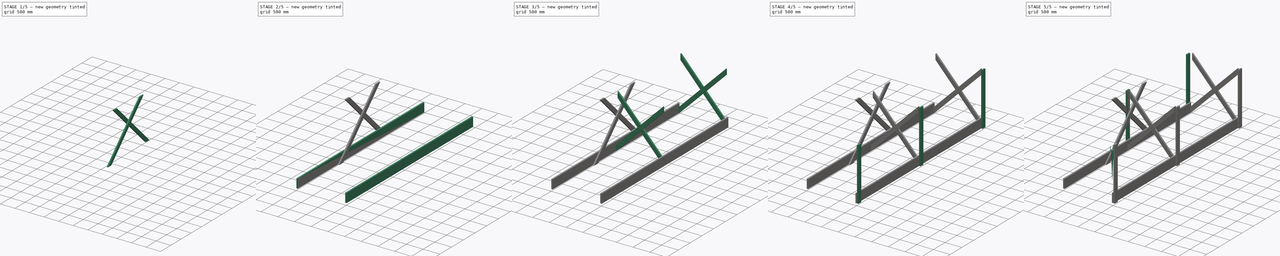
[diagram: build sequence overview — one tinted view per stage of 5, left to right]
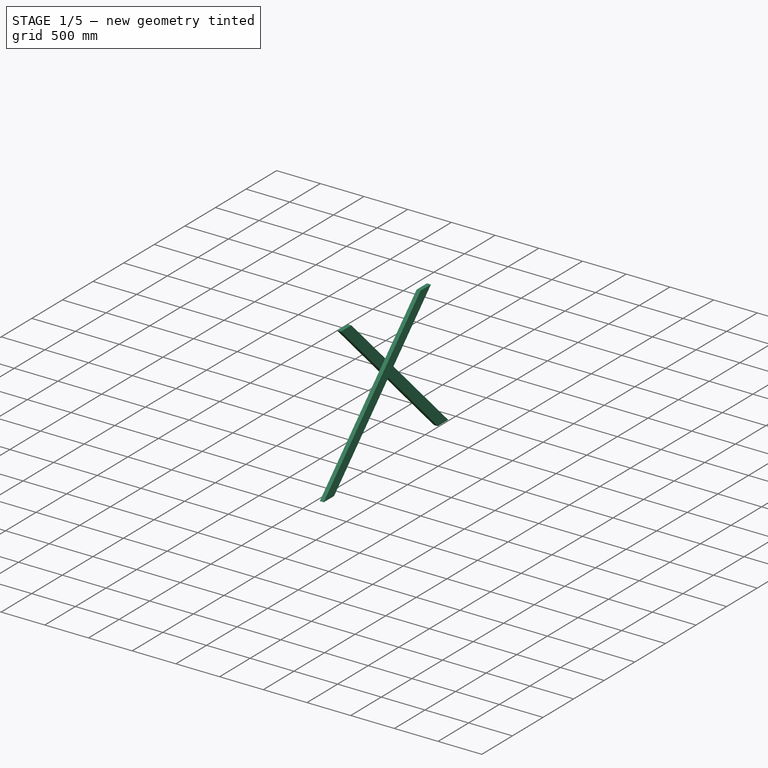
[diagram: stage 1 of 5 — iso view after this stage's code; geometry added in this stage tinted green]
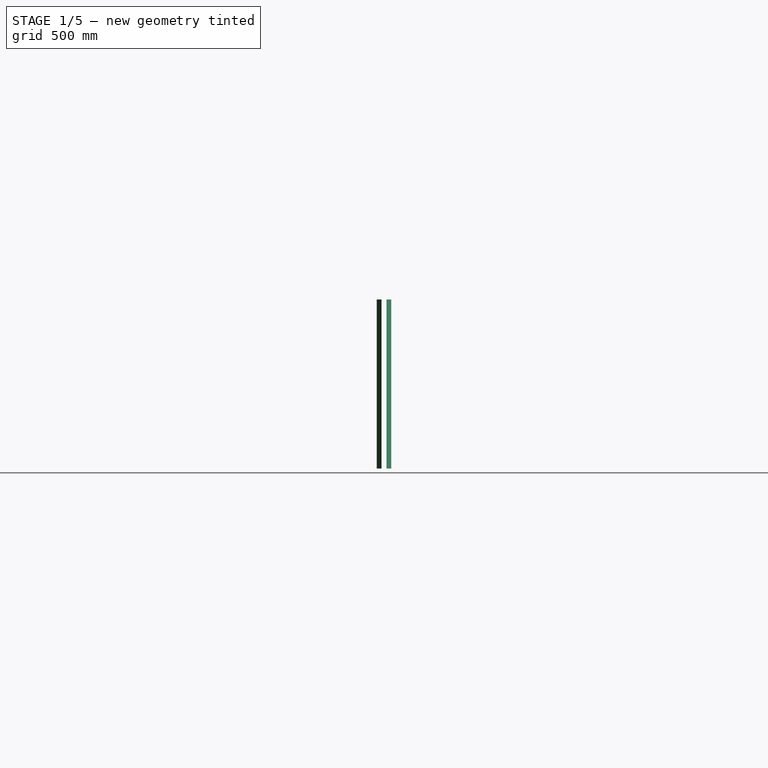
[diagram: stage 1 of 5 — front view after this stage's code; geometry added in this stage tinted green]
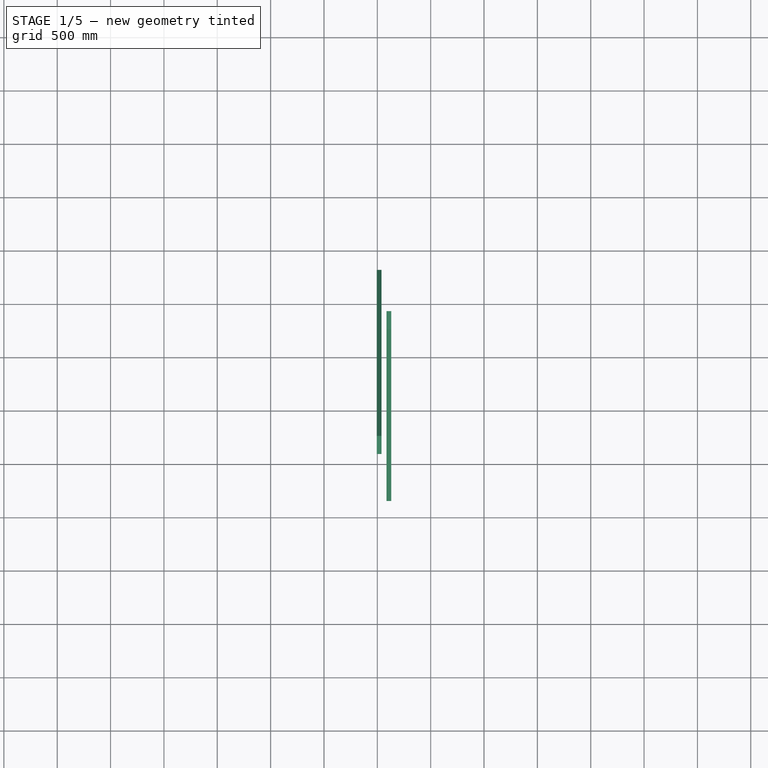
[diagram: stage 1 of 5 — top view after this stage's code; geometry added in this stage tinted green]
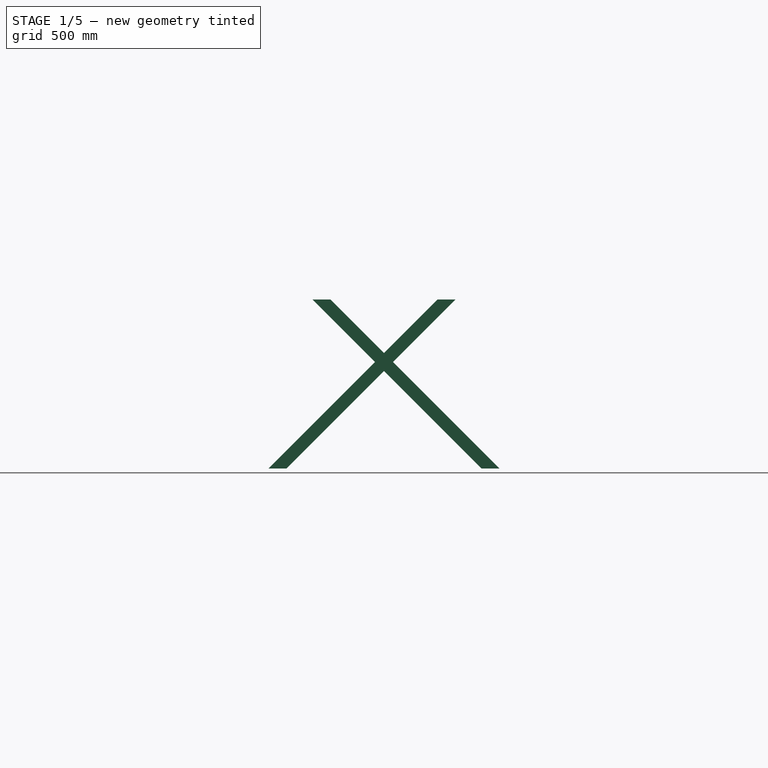
[diagram: stage 1 of 5 — right view after this stage's code; geometry added in this stage tinted green]
FCSTD DOCUMENT  (FreeCAD 0.16R)
Label: solar_mount
License: All rights reserved
LicenseURL: http://en.wikipedia.org/wiki/All_rights_reserved
objects: Part::FeaturePython×13, App::DocumentObjectGroup×6, Sketcher::SketchObject×3, PartDesign::Pad×3, Part::Box×2, Part::Cone×1, Part::Mirroring×1
note: 26 computed .brp shape members not serialized (recipe doc carries the construction recipe); baked Part::Feature solids carry a one-line shape summary decoded from their .brp

FEATURE [Sketcher::SketchObject] Sketch002
  Placement = pos=(45,3568.29,-1413.29) rot=(0.57735,0.57735,0.57735;2.0944rad)
  sketch-geometry (4):
    g0: LineSegment StartX=0 StartY=0 StartZ=0 EndX=-1583 EndY=1583 EndZ=0
    g1: LineSegment StartX=-1583 StartY=1583 StartZ=0 EndX=-1413.29 EndY=1583 EndZ=0
    g2: LineSegment StartX=-1413.29 StartY=1583 StartZ=0 EndX=169.706 EndY=0 EndZ=0
    g3: LineSegment StartX=169.706 StartY=0 StartZ=0 EndX=0 EndY=0 EndZ=0
  constraints (11):
    c: Coincident(g-1,g0)
    c: Coincident(g0,g1)
    c: Horizontal(g1)
    c: Coincident(g1,g2)
    c: PointOnObject(g2,g-1)
    c: Coincident(g2,g3)
    c: Coincident(g3,g0)
    c: Equal(g3,g1)
    c: Angle(g2,g3) = 0.785398
    c: Distance(g2,g0) = 120
    c: DistanceY(g-1,g0) = 1583
FEATURE [App::DocumentObjectGroup] Group001  label="Vertikaler"
  Group = -> [Box001,Clone006,Clone007,Clone008,Clone009,Clone010]
FEATURE [App::DocumentObjectGroup] Group002  label="X-kryss"
  Group = -> [Group,Clone004,Clone005]
FEATURE [App::DocumentObjectGroup] Group003  label="Horisontella"
  Group = -> [Box,Clone,Clone001,Clone003]
FEATURE [PartDesign::Pad] Pad002  label="Y-diag"
  Length = 45
  Length2 = 100
  Placement = pos=(45,3568.29,-1413.29) rot=(0.57735,0.57735,0.57735;2.0944rad)
  Sketch = -> Sketch002
  Type = 0
FEATURE [Part::FeaturePython] Clone011  label="Clone of Y-kryss"  # Draft clone (typed FeaturePython)
  Objects = -> [Pad002]
  Placement = pos=(-3.833e-09,1741.71,-1413.29) rot=(-0.57735,0.57735,0.57735;4.18879rad)
  Scale = (1,1,1)
FEATURE [Part::FeaturePython] Clone012  label="Clone of Y-kryss001"  # Draft clone (typed FeaturePython)
  Objects = -> [Pad002]
  Placement = pos=(-1505.62,3652.98,-1413.29) rot=(0.57735,0.57735,0.57735;2.0944rad)
  Scale = (1,1,1)
FEATURE [Part::FeaturePython] Clone013  label="Clone of Clone of Y-kryss"  # Draft clone (typed FeaturePython)
  Objects = -> [Clone011]
  Placement = pos=(-1369.36,1826.36,-1413.29) rot=(-0.57735,0.57735,0.57735;4.18879rad)
  Scale = (1,1,1)
FEATURE [App::DocumentObjectGroup] Group004  label="Y-kryss"
  Group = -> [Pad002,Clone011,Clone012,Clone013]
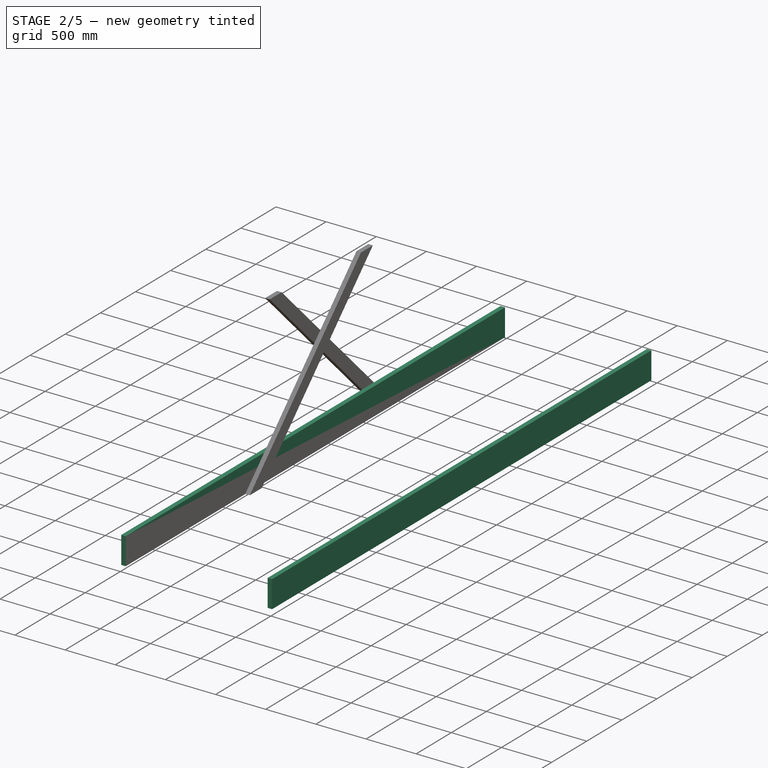
[diagram: stage 2 of 5 — iso view after this stage's code; geometry added in this stage tinted green]
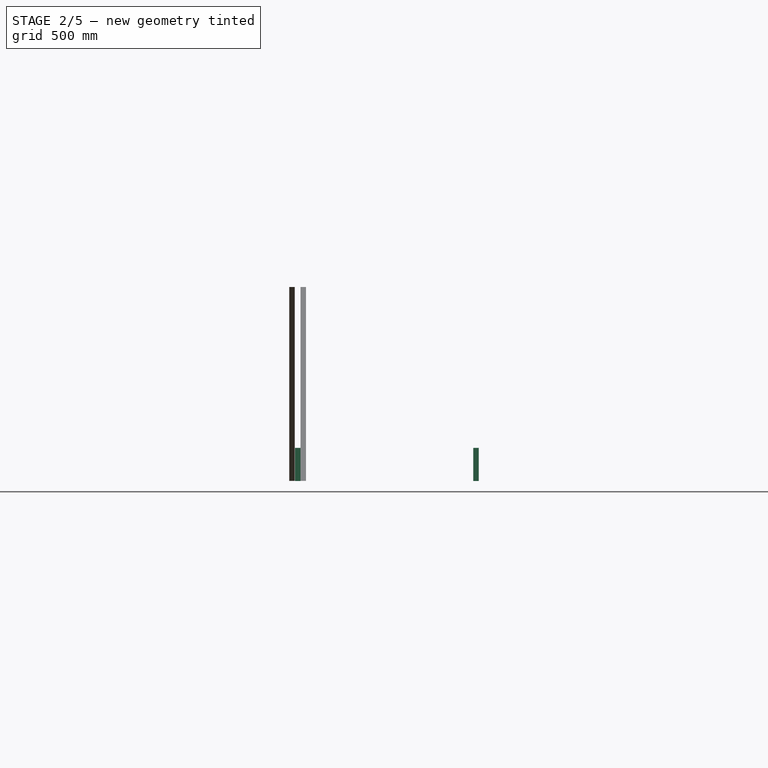
[diagram: stage 2 of 5 — front view after this stage's code; geometry added in this stage tinted green]
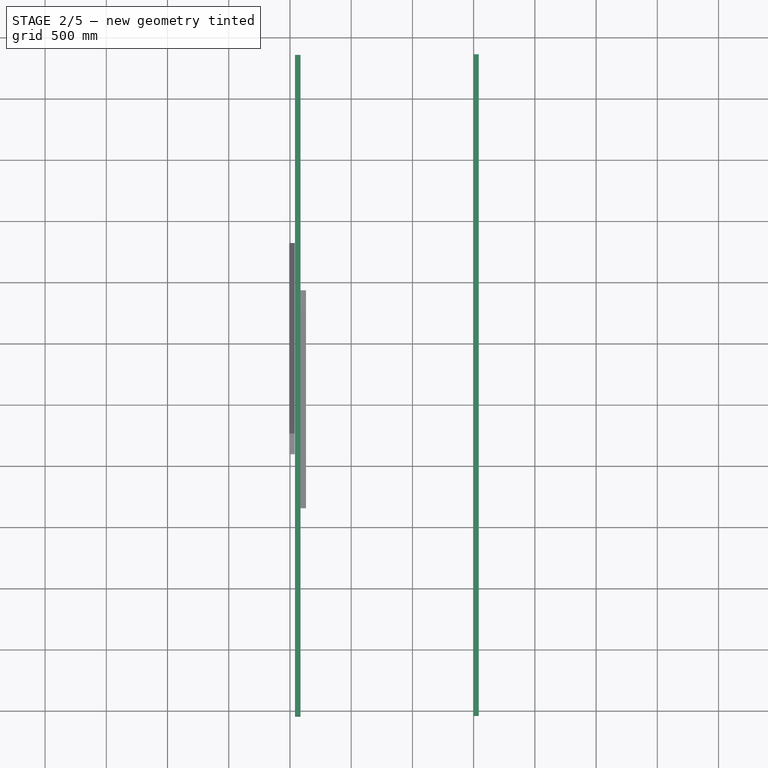
[diagram: stage 2 of 5 — top view after this stage's code; geometry added in this stage tinted green]
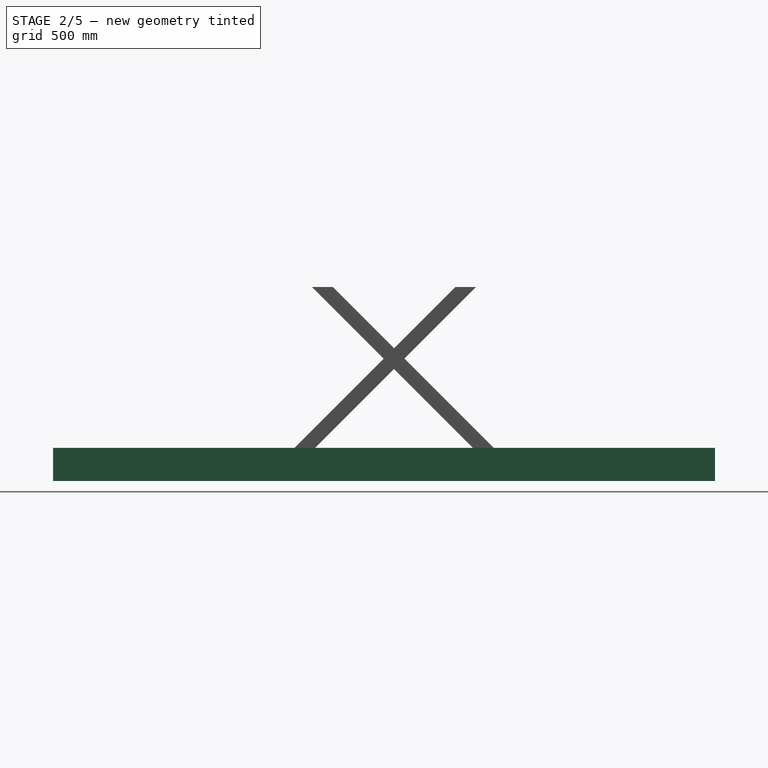
[diagram: stage 2 of 5 — right view after this stage's code; geometry added in this stage tinted green]
FEATURE [App::DocumentObjectGroup] Grupp
  Group = -> [Cone,Pad]
FEATURE [Part::Box] Box  label="2x4_lång"
  Height = 270
  Length = 5400
  Placement = pos=(45,-45,-97.6497) rot=(0,0,1;1.5708rad)
  Width = 45
FEATURE [Part::FeaturePython] Clone  label="Clone of 2x4_lång"  # Draft clone (typed FeaturePython)
  Objects = -> [Box]
  Placement = pos=(-1414.21,-45,-1414.21) rot=(0,0,1;1.5708rad)
  Scale = (1,1,1)
FEATURE [Part::FeaturePython] Clone001  label="Clone of 2x4_lång001"  # Draft clone (typed FeaturePython)
  Objects = -> [Box]
  Placement = pos=(-1415.62,39.6889,-100.294) rot=(0,0,1;1.5708rad)
  Scale = (1,1,1)
FEATURE [Part::FeaturePython] Clone003  label="Clone of Clone of 2x4_lång002"  # Draft clone (typed FeaturePython)
  Objects = -> [Clone001]
  Placement = pos=(41.368,-39.5475,-1414.21) rot=(0,0,1;1.5708rad)
  Scale = (1,1,1)
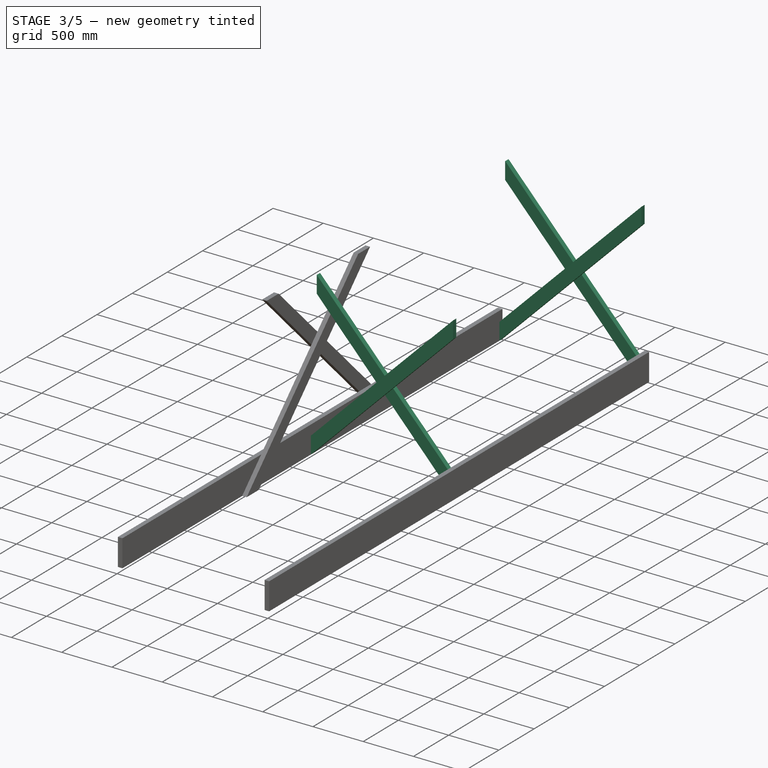
[diagram: stage 3 of 5 — iso view after this stage's code; geometry added in this stage tinted green]
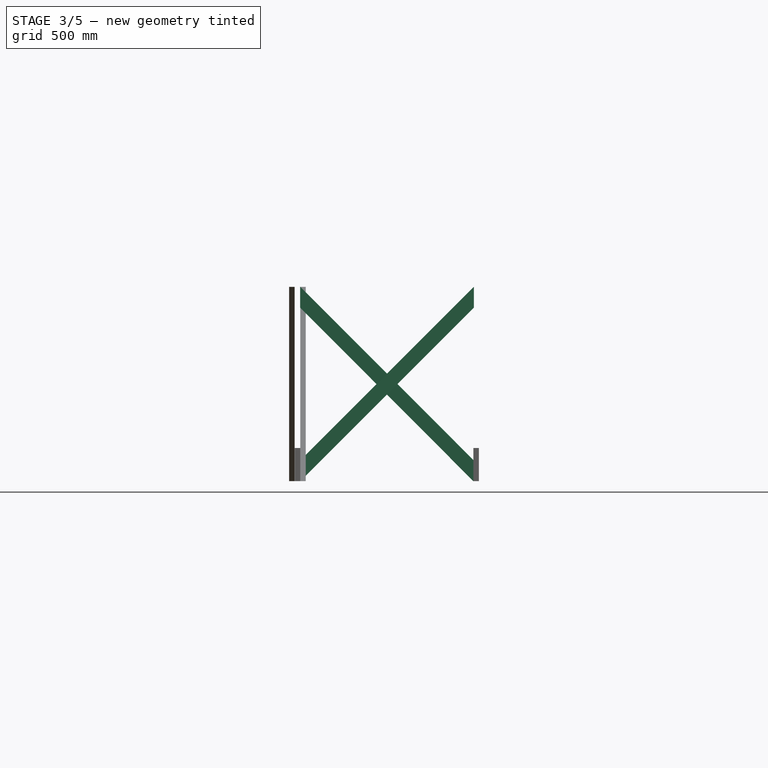
[diagram: stage 3 of 5 — front view after this stage's code; geometry added in this stage tinted green]
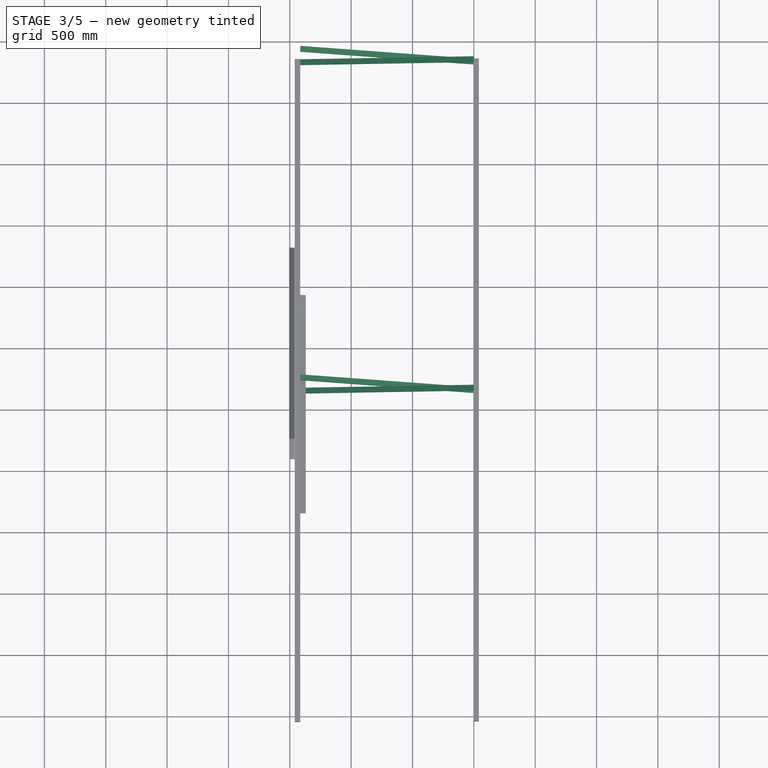
[diagram: stage 3 of 5 — top view after this stage's code; geometry added in this stage tinted green]
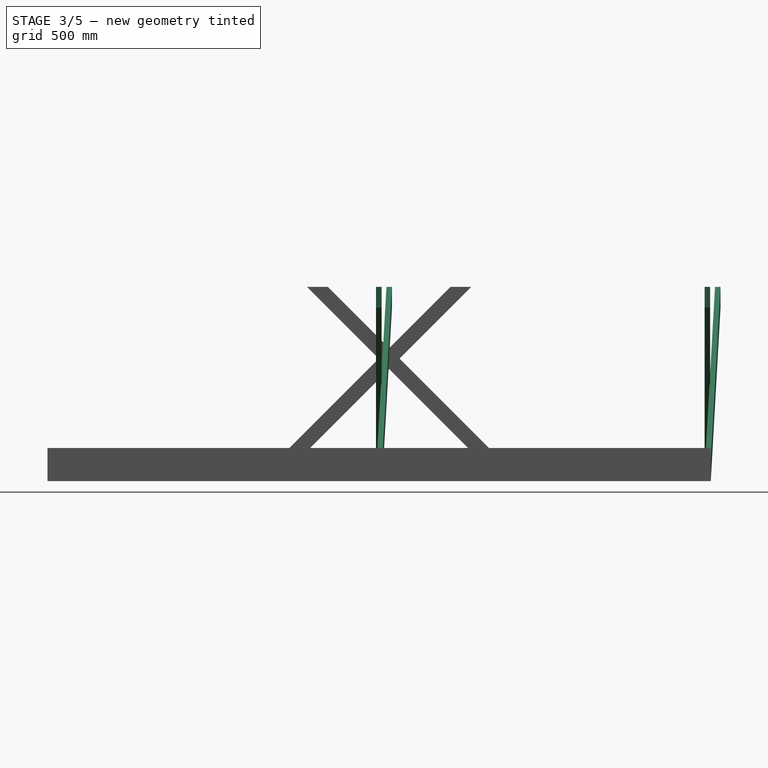
[diagram: stage 3 of 5 — right view after this stage's code; geometry added in this stage tinted green]
FEATURE [Sketcher::SketchObject] Sketch001
  Placement = pos=(0,0,0) rot=(0.862856,-0.357407,0.357407;1.71777rad)
  sketch-geometry (4):
    g0: LineSegment StartX=0 StartY=0 StartZ=0 EndX=120 EndY=120 EndZ=0
    g1: LineSegment StartX=120 StartY=120 StartZ=0 EndX=-1880 EndY=120 EndZ=0
    g2: LineSegment StartX=-1880 StartY=120 StartZ=0 EndX=-2000 EndY=0 EndZ=0
    g3: LineSegment StartX=-2000 StartY=0 StartZ=0 EndX=0 EndY=0 EndZ=0
  constraints (11):
    c: Coincident(g-1,g0)
    c: Coincident(g0,g1)
    c: Horizontal(g1)
    c: Coincident(g1,g2)
    c: PointOnObject(g2,g-1)
    c: Coincident(g2,g3)
    c: Coincident(g3,g0)
    c: DistanceY(g-1,g0) = 120
    c: DistanceX(g2,g-1) = 2000
    c: Equal(g3,g1)
    c: Angle(g2,g1) = 2.35619
FEATURE [PartDesign::Pad] Pad001  label="2x4_diagonal"
  Length = 45
  Length2 = 100
  Placement = pos=(0,0,0) rot=(0.862856,-0.357407,0.357407;1.71777rad)
  Sketch = -> Sketch001
  Type = 0
FEATURE [Part::Mirroring] mirror001  label="Mirror of 2x4_diagonal"
  Base = (-707.107,0,-572.756)
  Normal = (0.999607,-0.0280253,7e-12)
  Placement = pos=(0,45,0) rot=(0,0,1;0rad)
  Source = -> Pad001
FEATURE [App::DocumentObjectGroup] Group  label="Kryss"
  Group = -> [Pad001,mirror001]
FEATURE [Part::FeaturePython] Clone004  label="Clone of Kryss"  # Draft clone (typed FeaturePython)
  Objects = -> [Group]
  Placement = pos=(9.6e-11,5355,3.096e-09) rot=(0,0,1;0rad)
  Scale = (1,1,1)
FEATURE [Part::FeaturePython] Clone005  label="Clone of Kryss001"  # Draft clone (typed FeaturePython)
  Objects = -> [Group]
  Placement = pos=(-1.858e-09,2677.5,-4.302e-09) rot=(0,0,1;0rad)
  Scale = (1,1,1)
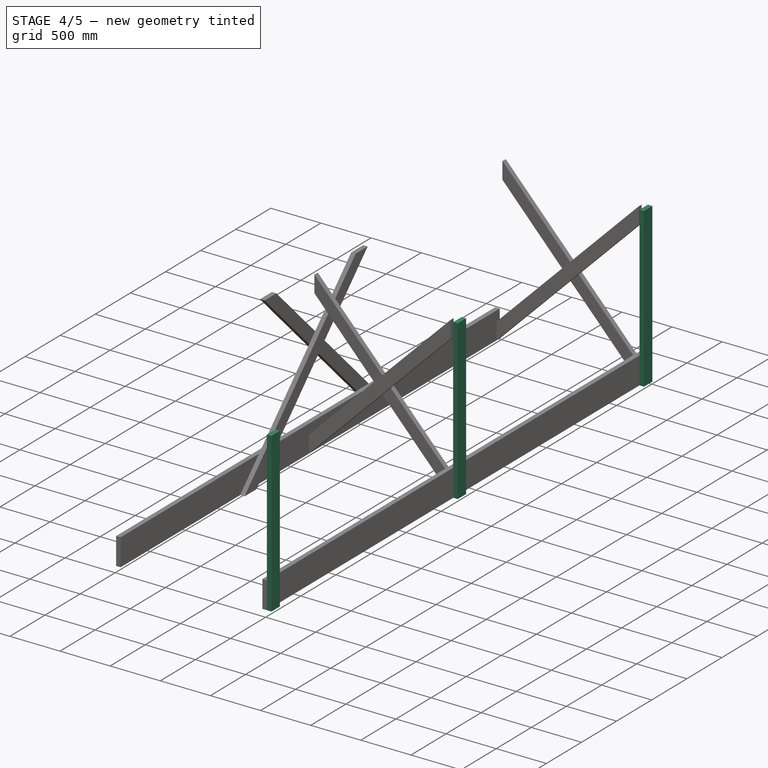
[diagram: stage 4 of 5 — iso view after this stage's code; geometry added in this stage tinted green]
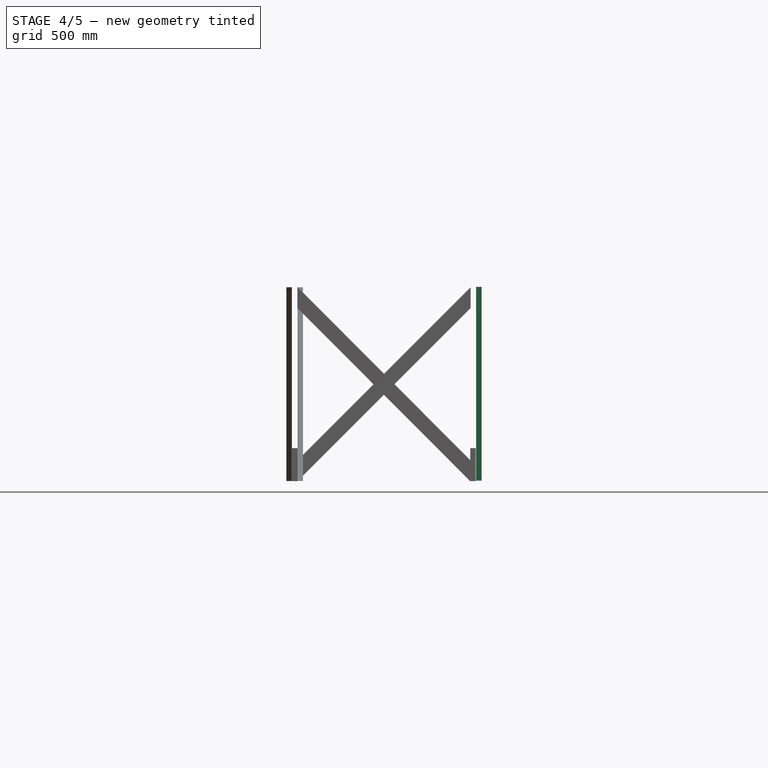
[diagram: stage 4 of 5 — front view after this stage's code; geometry added in this stage tinted green]
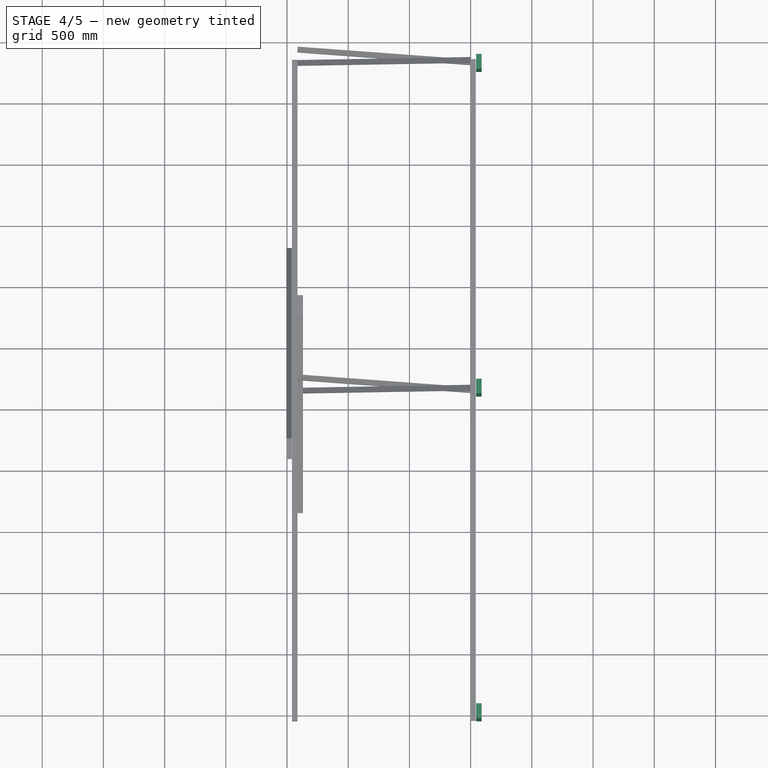
[diagram: stage 4 of 5 — top view after this stage's code; geometry added in this stage tinted green]
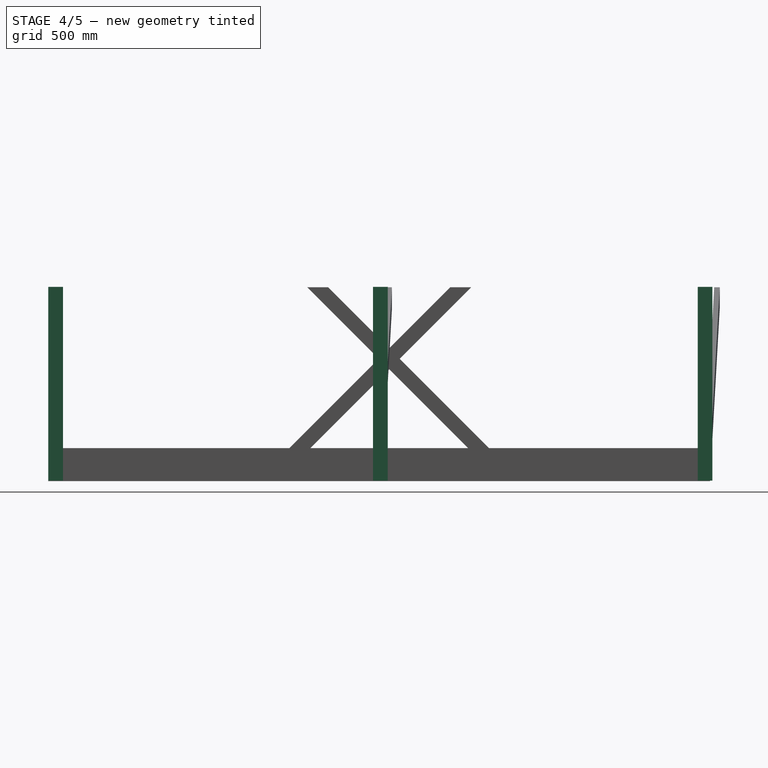
[diagram: stage 4 of 5 — right view after this stage's code; geometry added in this stage tinted green]
FEATURE [Part::Box] Box001  label="Vertikal"
  Height = 1583
  Length = 45
  Placement = pos=(-1505.62,39.6889,-1410.65) rot=(0,0,1;0rad)
  Width = 120
FEATURE [Part::FeaturePython] Clone008  label="Clone of Vertikal002"  # Draft clone (typed FeaturePython)
  Objects = -> [Box001]
  Placement = pos=(45,-45,-1410.65) rot=(0,0,1;0rad)
  Scale = (1,1,1)
FEATURE [Part::FeaturePython] Clone009  label="Clone of Vertikal003"  # Draft clone (typed FeaturePython)
  Objects = -> [Box001]
  Placement = pos=(45,2607.5,-1410.65) rot=(0,0,1;0rad)
  Scale = (1,1,1)
FEATURE [Part::FeaturePython] Clone010  label="Clone of Vertikal004"  # Draft clone (typed FeaturePython)
  Objects = -> [Box001]
  Placement = pos=(45,5260,-1410.65) rot=(0,0,1;0rad)
  Scale = (1,1,1)
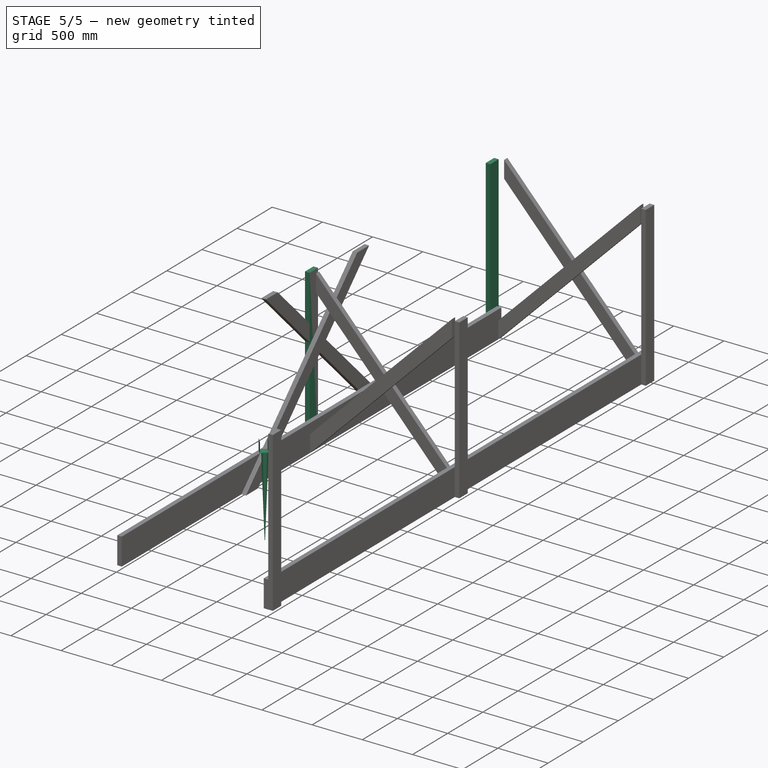
[diagram: stage 5 of 5 — iso view after this stage's code; geometry added in this stage tinted green]
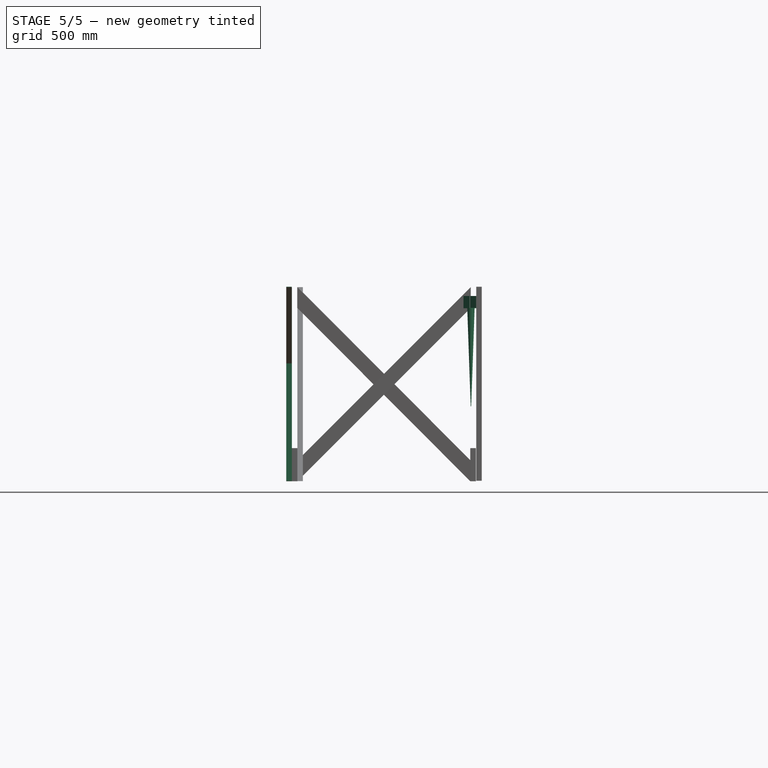
[diagram: stage 5 of 5 — front view after this stage's code; geometry added in this stage tinted green]
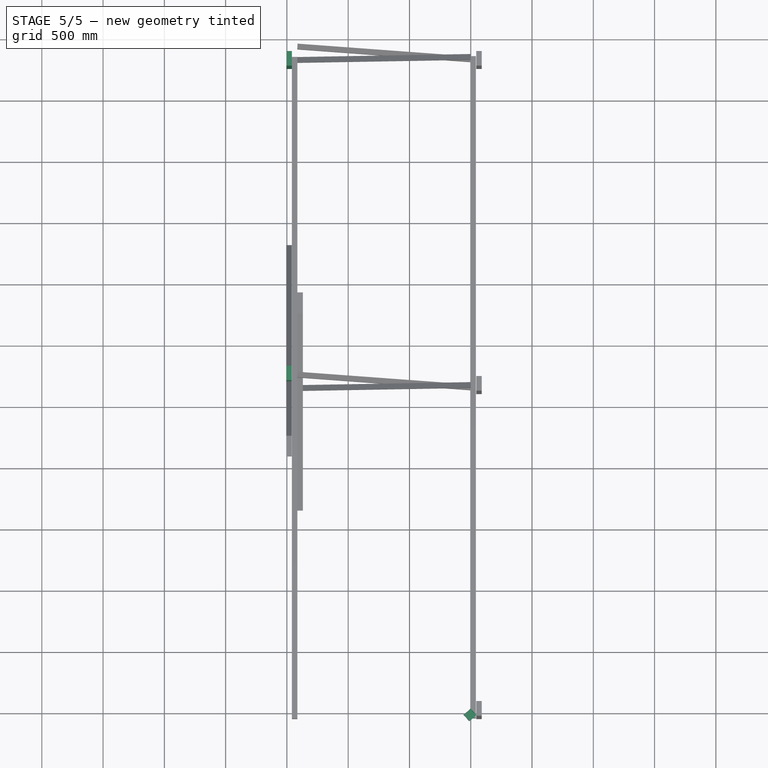
[diagram: stage 5 of 5 — top view after this stage's code; geometry added in this stage tinted green]
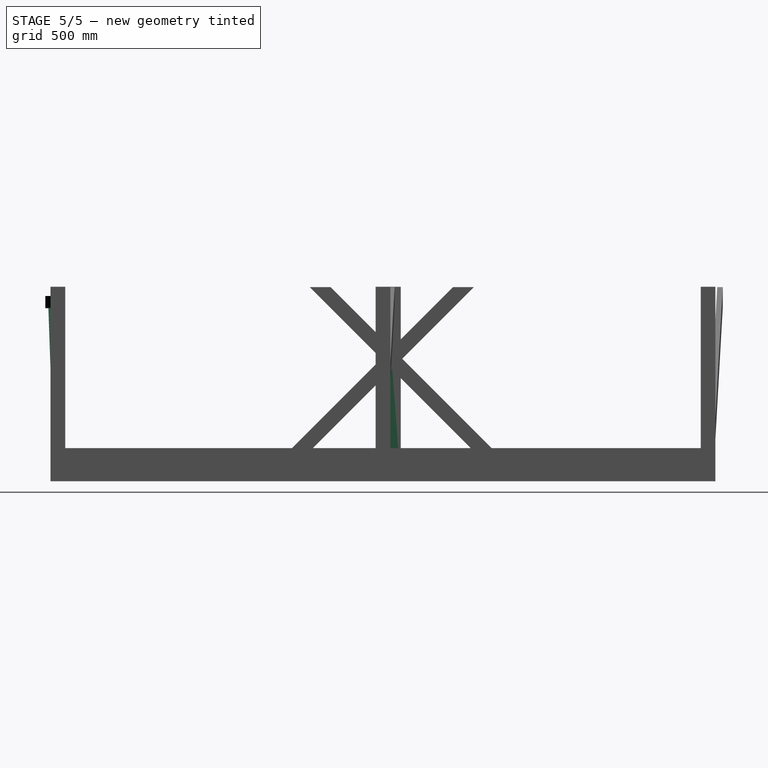
[diagram: stage 5 of 5 — right view after this stage's code; geometry added in this stage tinted green]
FEATURE [Sketcher::SketchObject] Sketch
  Placement = pos=(17.1362,-62.1662,47) rot=(-0.261476,0.682507,0.682507;3.65309rad)
  sketch-geometry (8):
    g0: LineSegment StartX=-38.5 StartY=50 StartZ=0 EndX=-35.5 EndY=50 EndZ=0
    g1: LineSegment StartX=-35.5 StartY=50 StartZ=0 EndX=-35.5 EndY=-47 EndZ=0
    g2: LineSegment StartX=-35.5 StartY=-47 StartZ=0 EndX=35.5 EndY=-47 EndZ=0
    g3: LineSegment StartX=35.5 StartY=-47 StartZ=0 EndX=35.5 EndY=50 EndZ=0
    g4: LineSegment StartX=35.5 StartY=50 StartZ=0 EndX=38.5 EndY=50 EndZ=0
    g5: LineSegment StartX=38.5 StartY=50 StartZ=0 EndX=38.5 EndY=-50 EndZ=0
    g6: LineSegment StartX=38.5 StartY=-50 StartZ=0 EndX=-38.5 EndY=-50 EndZ=0
    g7: LineSegment StartX=-38.5 StartY=-50 StartZ=0 EndX=-38.5 EndY=50 EndZ=0
  constraints (23):
    c: Horizontal(g0)
    c: Coincident(g0,g1)
    c: Vertical(g1)
    c: Coincident(g1,g2)
    c: Coincident(g2,g3)
    c: Coincident(g3,g4)
    c: Coincident(g4,g5)
    c: Vertical(g5)
    c: Coincident(g5,g6)
    c: Coincident(g6,g7)
    c: Coincident(g7,g0)
    c: Parallel(g7,g1)
    c: Parallel(g-2,g3)
    c: Parallel(g0,g4)
    c: Parallel(g2,g6)
    c: Symmetric(g1,g2,g-2)
    c: Symmetric(g6,g5,g-2)
    c: DistanceX(g2,g2) = 71
    c: DistanceX(g6,g6) = 77
    c: DistanceY(g7,g7) = 100
    c: DistanceY(g1,g1) = 97
    c: DistanceY(g3,g0) = 0
    c: Symmetric(g4,g5,g-1)
FEATURE [PartDesign::Pad] Pad
  Length = 71
  Length2 = 100
  Placement = pos=(17.1362,-62.1662,47) rot=(-0.261476,0.682507,0.682507;3.65309rad)
  Sketch = -> Sketch
  Type = 0
FEATURE [Part::Cone] Cone  label="Kon"
  Angle = 360
  Height = 800
  Placement = pos=(1.51615,-32.5872,-803) rot=(0,0,-1;0.329099rad)
  Radius1 = 2
  Radius2 = 30
FEATURE [Part::FeaturePython] Clone006  label="Clone of Vertikal"  # Draft clone (typed FeaturePython)
  Objects = -> [Box001]
  Placement = pos=(-1504.21,5260,-1414.21) rot=(0,0,1;0rad)
  Scale = (1,1,1)
FEATURE [Part::FeaturePython] Clone007  label="Clone of Vertikal001"  # Draft clone (typed FeaturePython)
  Objects = -> [Box001]
  Placement = pos=(-1505.62,2692.19,-1410.65) rot=(0,0,1;0rad)
  Scale = (1,1,1)
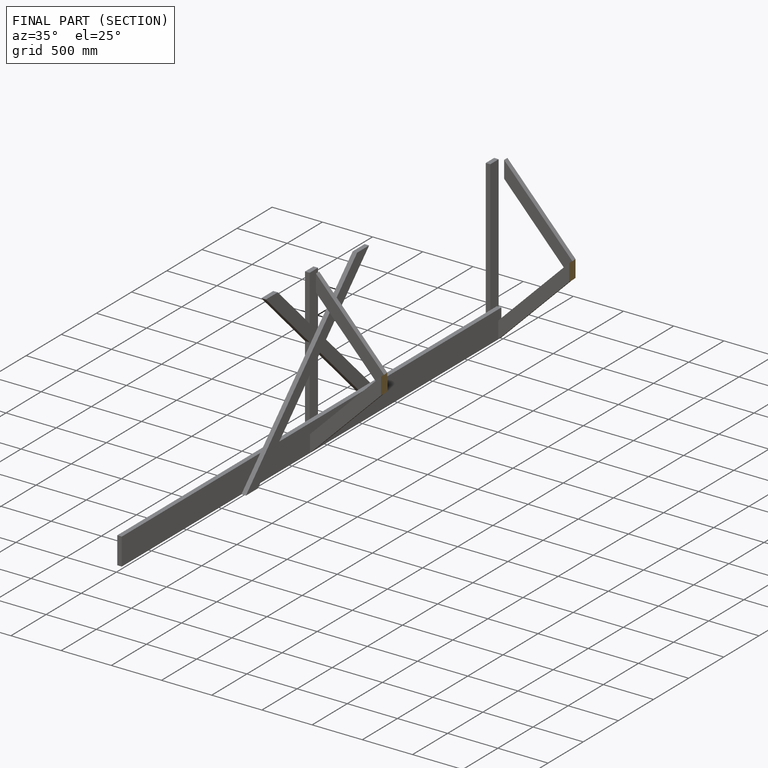
[diagram: finished part — half-section view (interior)]
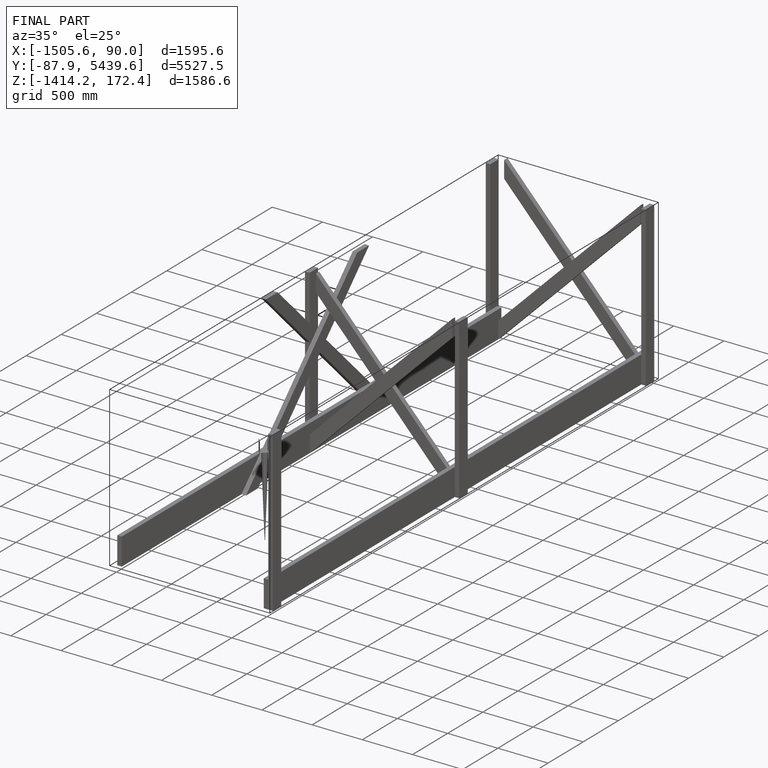
[diagram: finished part — iso view with bounding-box wireframe]
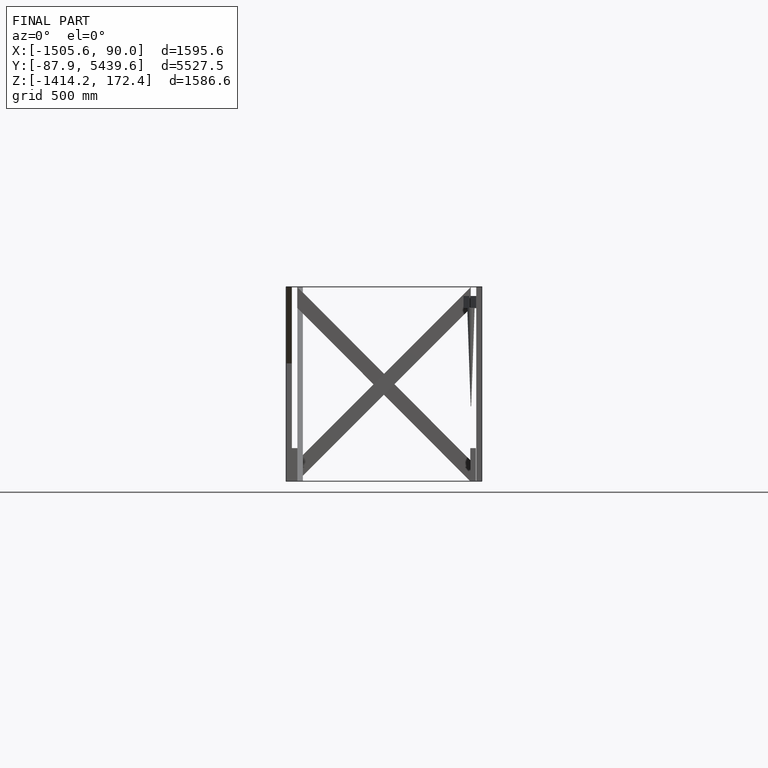
[diagram: finished part — front view with bounding-box wireframe]
